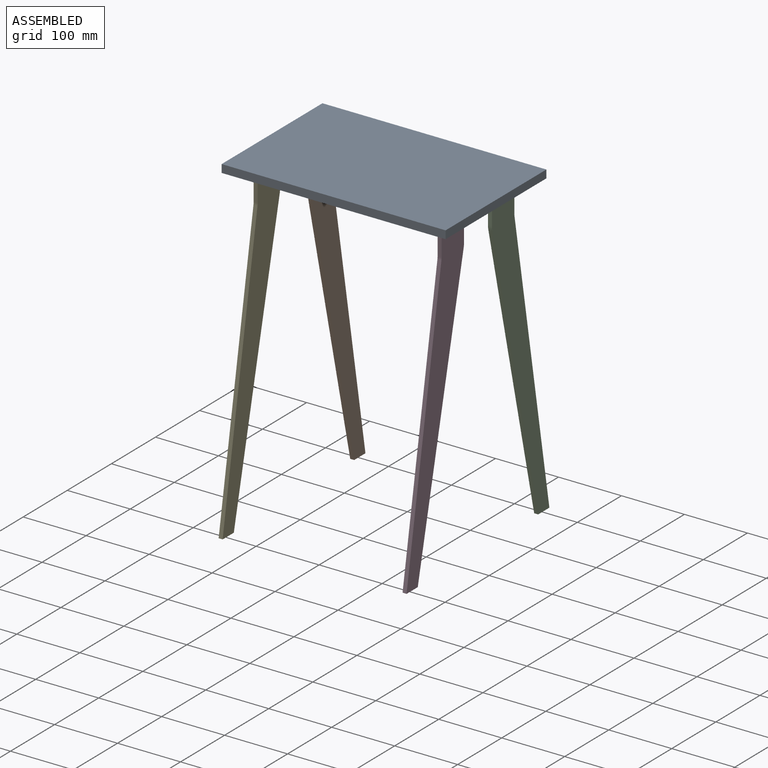
[diagram: assembled view]
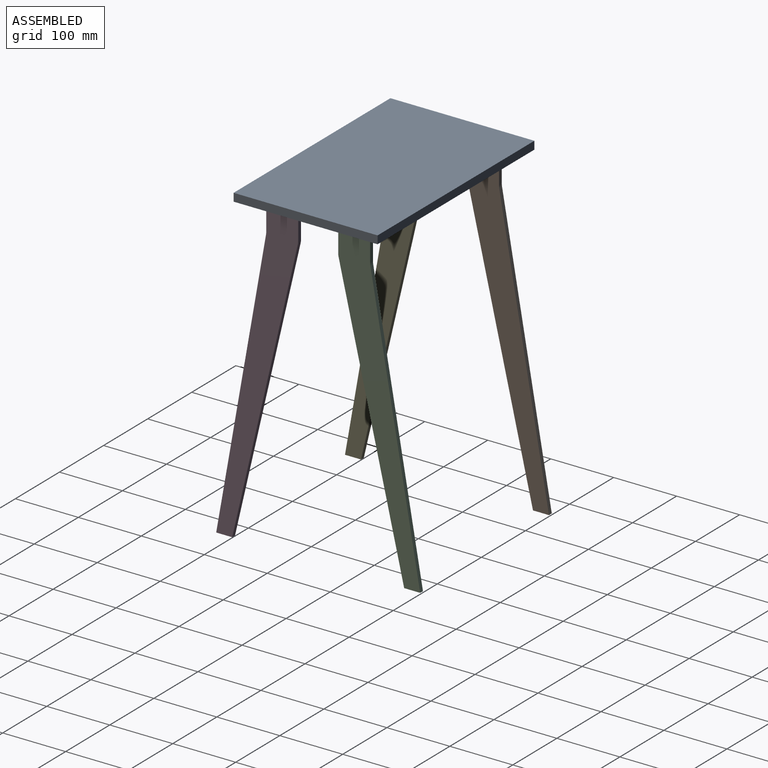
[diagram: assembled view, second angle]
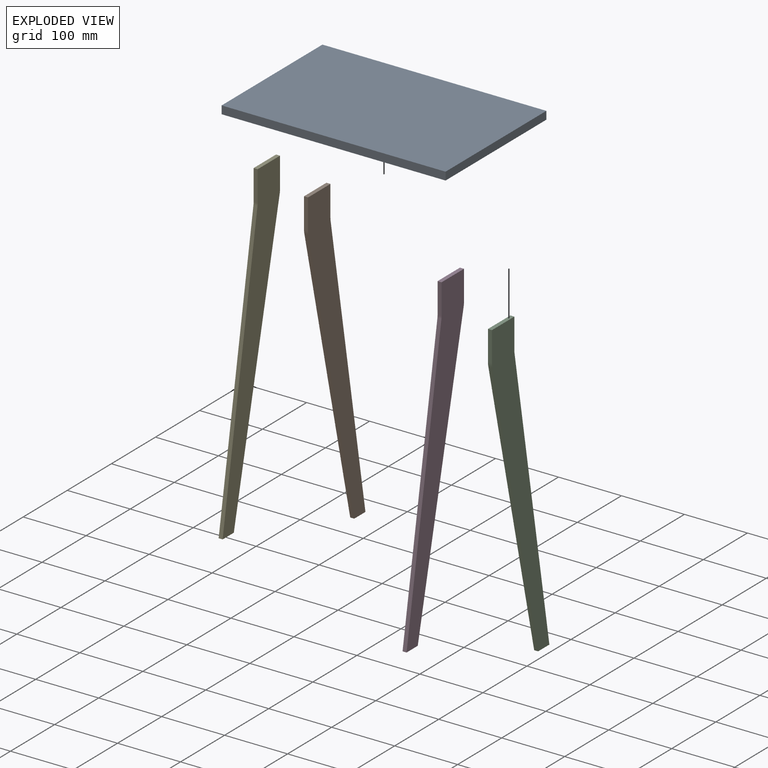
[diagram: exploded view]
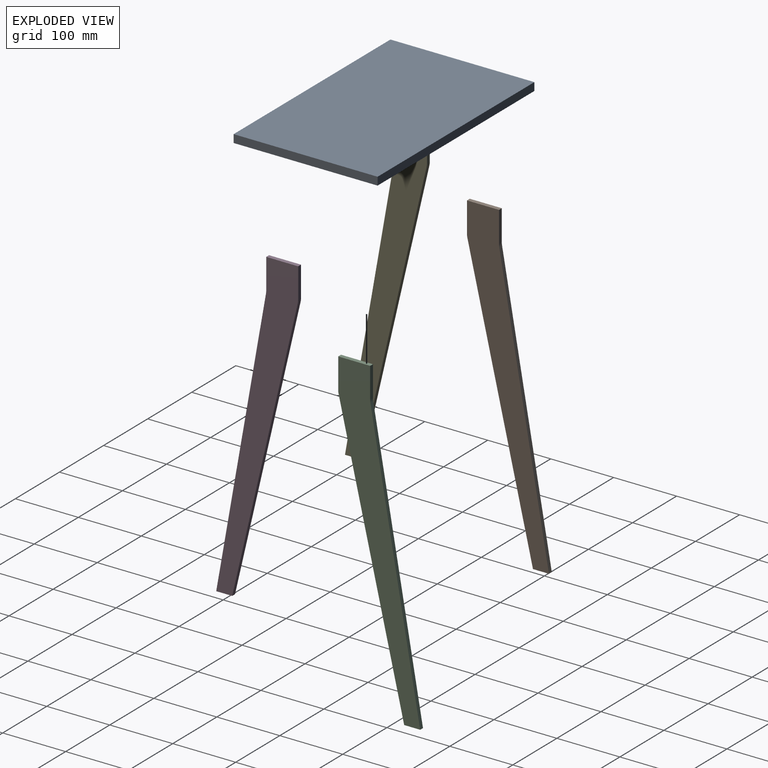
[diagram: exploded view, second angle]
ASSEMBLY  parts=5 mates=4
PART A: 26 faces, bbox 355.6x228.6x12.7 mm
  f0: plane 355.6x228.6mm, normal (0,0,-1), area 79999.8mm2, adj f1,f2,f3,f4,f6,f7,f8,f9
  f1: plane 228.6x12.7mm, normal (1,0,0), area 2903.2mm2, adj f0,f2,f4,f5
  f2: plane 355.6x12.7mm, normal (0,1,0), area 4516.1mm2, adj f0,f1,f3,f5
  f3: plane 228.6x12.7mm, normal (-1,0,0), area 2903.2mm2, adj f0,f2,f4,f5
  f4: plane 355.6x12.7mm, normal (0,-1,0), area 4516.1mm2, adj f0,f1,f3,f5
  f5: plane 355.6x228.6mm, normal (0,0,1), area 81290.2mm2, adj f1,f2,f3,f4
  f6: plane 50.8x2.54mm, normal (1,0,0), area 129mm2, adj f0,f7,f9,f10
  f7: plane 6.35x2.54mm, normal (0,-1,0), area 16.1mm2, adj f0,f6,f8,f10
  f8: plane 50.8x2.54mm, normal (-1,0,0), area 129mm2, adj f0,f7,f9,f10
  f9: plane 6.35x2.54mm, normal (0,1,0), area 16.1mm2, adj f0,f6,f8,f10
  f10: plane 50.8x6.35mm, normal (0,0,-1), area 322.6mm2, adj f6,f7,f8,f9
  f11: plane 6.35x2.54mm, normal (0,1,0), area 16.1mm2, adj f0,f12,f14,f15
  f12: plane 50.8x2.54mm, normal (1,0,0), area 129mm2, adj f0,f11,f13,f15
  f13: plane 6.35x2.54mm, normal (0,-1,0), area 16.1mm2, adj f0,f12,f14,f15
  f14: plane 50.8x2.54mm, normal (-1,0,0), area 129mm2, adj f0,f11,f13,f15
  f15: plane 50.8x6.35mm, normal (0,0,-1), area 322.6mm2, adj f11,f12,f13,f14
  f16: plane 50.8x2.54mm, normal (-1,0,0), area 129mm2, adj f0,f17,f19,f20
  f17: plane 6.35x2.54mm, normal (0,1,0), area 16.1mm2, adj f0,f16,f18,f20
  f18: plane 50.8x2.54mm, normal (1,0,0), area 129mm2, adj f0,f17,f19,f20
  f19: plane 6.35x2.54mm, normal (0,-1,0), area 16.1mm2, adj f0,f16,f18,f20
  f20: plane 50.8x6.35mm, normal (0,0,-1), area 322.6mm2, adj f16,f17,f18,f19
  f21: plane 50.8x2.54mm, normal (1,0,0), area 129mm2, adj f0,f22,f24,f25
  f22: plane 6.35x2.54mm, normal (0,-1,0), area 16.1mm2, adj f0,f21,f23,f25
  f23: plane 50.8x2.54mm, normal (-1,0,0), area 129mm2, adj f0,f22,f24,f25
  f24: plane 6.35x2.54mm, normal (0,1,0), area 16.1mm2, adj f0,f21,f23,f25
  f25: plane 50.8x6.35mm, normal (0,0,-1), area 322.6mm2, adj f21,f22,f23,f24
PART B: 10 faces, bbox 130.2x6.4x501.1 mm
  f0: plane 50.8x6.35mm, normal (0,0,-1), area 322.6mm2, adj f1,f5,f6,f7
  f1: plane 48.58x6.35mm, normal (1,0,0), area 308.5mm2, adj f0,f6,f7,f8
  f2: plane 448.07x79.01mm, normal (0.98,0,-0.17), area 2889.1mm2, adj f3,f6,f7,f8
  f3: plane 25.4x6.35mm, normal (0,0,1), area 161.3mm2, adj f2,f4,f6,f7
  f4: plane 447.41x104.13mm, normal (-0.97,0,0.23), area 2917mm2, adj f3,f6,f7,f9
  f5: plane 47.88x6.35mm, normal (-1,0,0), area 304.1mm2, adj f0,f6,f7,f9
  f6: plane 501.05x130.19mm, normal (0,-1,0), area 19735.1mm2, adj f0,f1,f2,f3,f4,f5,f8,f9
  f7: plane 501.05x130.19mm, normal (0,1,0), area 19735.1mm2, adj f0,f1,f2,f3,f4,f5,f8,f9
  f8: cylinder r=25.4mm len=6.35mm, axis (0,1,0), area 28.2mm2, adj f1,f2,f6,f7
  f9: cylinder r=25.4mm len=6.35mm, axis (0,-1,0), area 36.9mm2, adj f4,f5,f6,f7
PART C: same geometry as B
PART D: same geometry as B
PART E: same geometry as B
PLACE A t=(-50.19,-9.62,22.69)mm
PLACE B rot(axis=(-0.71,-0.71,0),180deg) t=(-193.06,47.53,-0.17)mm
PLACE C rot(axis=(-0.71,-0.71,0),180deg) t=(99.04,47.53,-0.17)mm
PLACE D rot(axis=(-0.71,0.71,0),180deg) t=(92.69,-66.77,-0.17)mm
PLACE E rot(axis=(-0.71,0.71,0),180deg) t=(-199.41,-66.77,-0.17)mm
MATE planar C.f0 <-> A.f25  axis (0,0,1) through (95.86,47.53,25.23)mm
MATE planar D.f0 <-> A.f15  axis (0,0,1) through (95.86,-66.77,25.23)mm
MATE planar E.f0 <-> A.f20  axis (0,0,1) through (-196.24,-66.77,25.23)mm
MATE planar B.f0 <-> A.f10  axis (0,0,1) through (-196.24,47.53,25.23)mm
